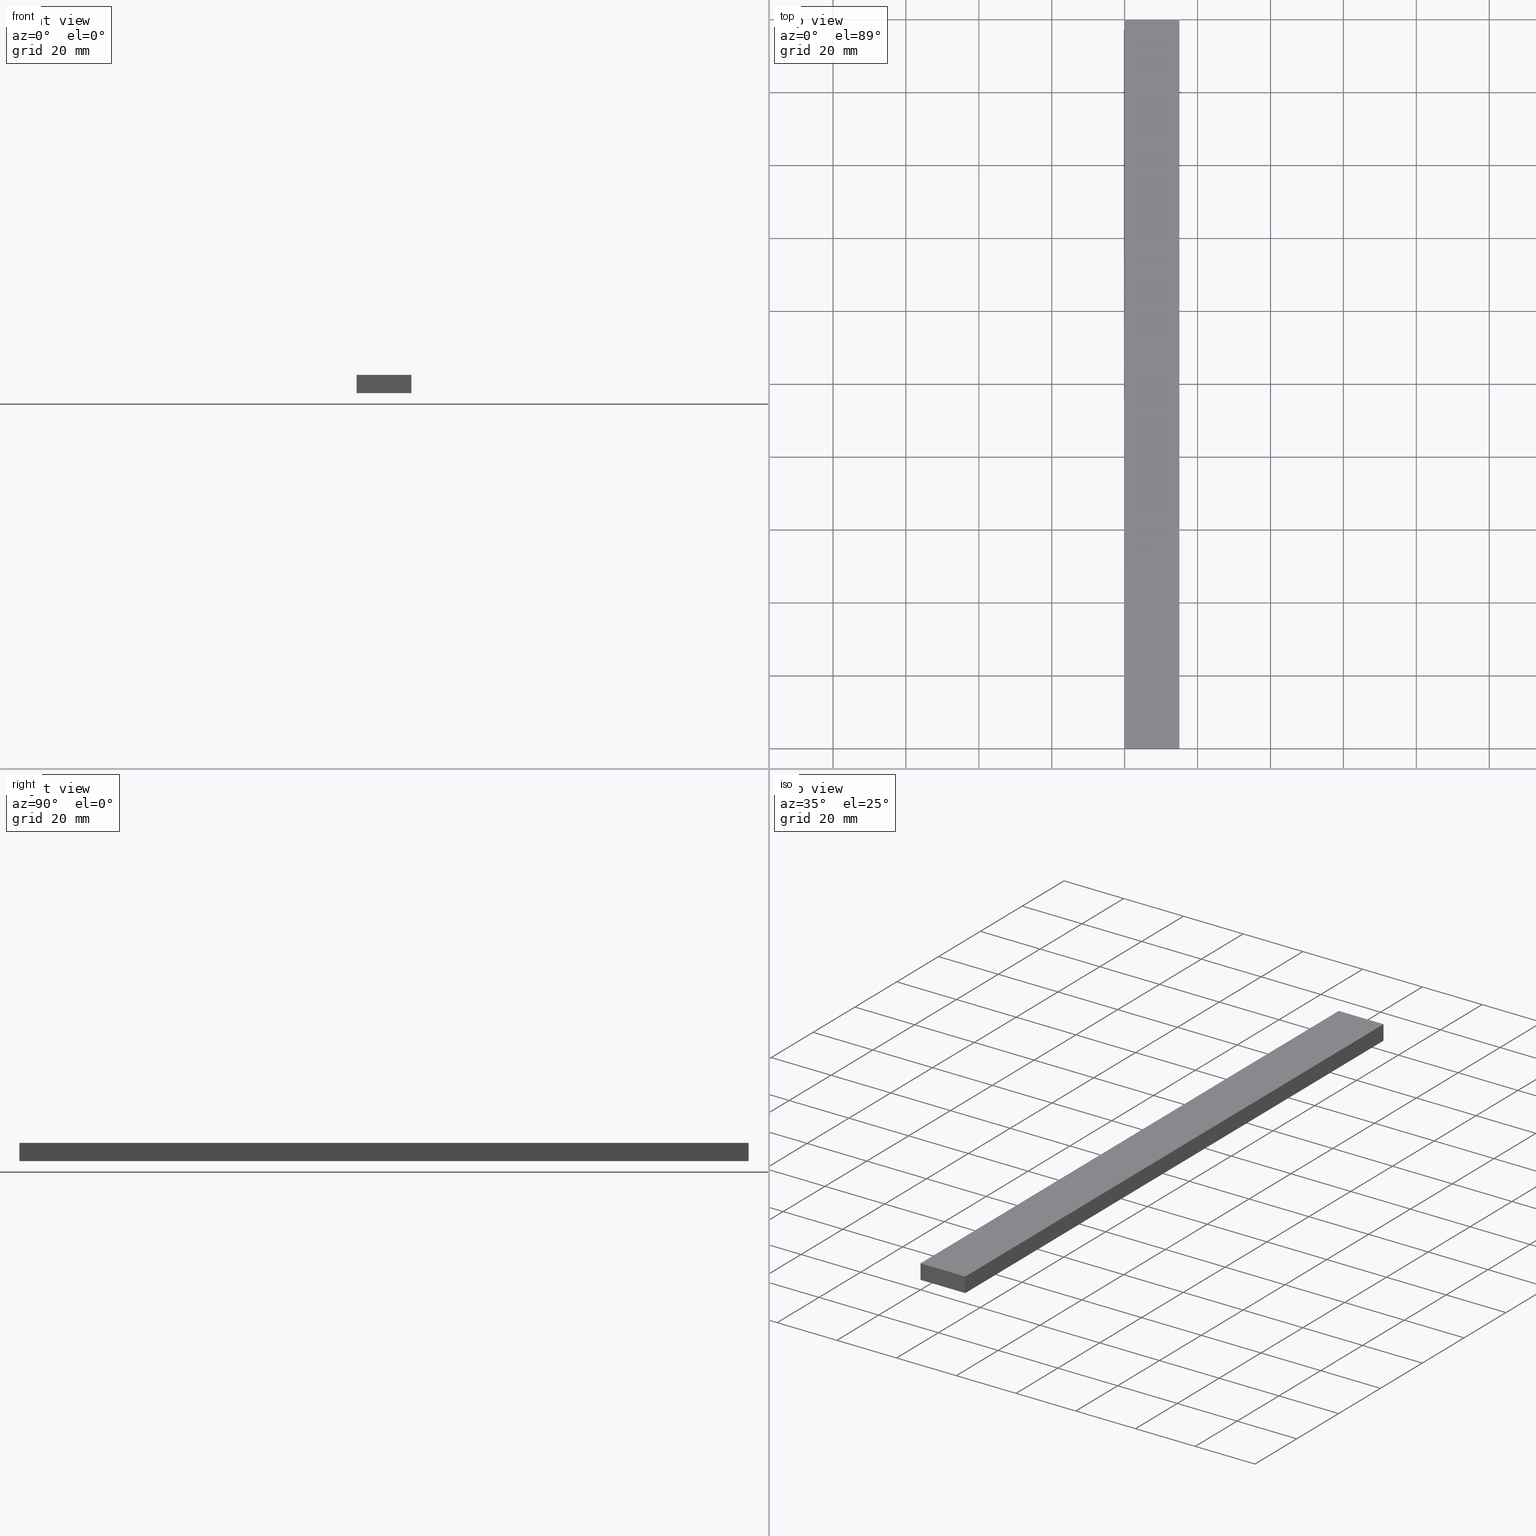
[diagram: canonical four-view strip — front | top / right | iso, engineering-drawing reading convention]
A machine part, canonical four-view strip (front | top / right | iso — engineering-drawing reading convention). The complete STEP part file that produces these views, byte-faithful:
ISO-10303-21;
HEADER;
FILE_DESCRIPTION (( 'STEP AP214' ),
    '1' );
FILE_NAME ('TM_340W_3.STEP',
    '2016-05-09T07:22:38',
    ( '' ),
    ( '' ),
    'SwSTEP 2.0',
    'SolidWorks 2015',
    '' );
FILE_SCHEMA (( 'AUTOMOTIVE_DESIGN' ));
ENDSEC;

DATA;
#1 = LINE ( 'NONE', #127, #180 ) ;
#2 = ORIENTED_EDGE ( 'NONE', *, *, #52, .F. ) ;
#3 = CARTESIAN_POINT ( 'NONE',  ( 0.0000000000000000000, 1000.000000000000000, 5.000000000000000000 ) ) ;
#4 = DIRECTION ( 'NONE',  ( -1.000000000000000000, 0.0000000000000000000, 0.0000000000000000000 ) ) ;
#5 = CARTESIAN_POINT ( 'NONE',  ( 15.00000000000000000, 200.0000000000000000, 5.000000000000000000 ) ) ;
#6 = FACE_OUTER_BOUND ( 'NONE', #100, .T. ) ;
#7 = EDGE_CURVE ( 'NONE', #44, #79, #220, .T. ) ;
#8 = UNCERTAINTY_MEASURE_WITH_UNIT (LENGTH_MEASURE( 1.000000000000000100E-005 ), #116, 'distance_accuracy_value', 'NONE');
#9 =( LENGTH_UNIT ( ) NAMED_UNIT ( * ) SI_UNIT ( .MILLI., .METRE. ) );
#10 = DIRECTION ( 'NONE',  ( -0.0000000000000000000, 1.000000000000000000, 0.0000000000000000000 ) ) ;
#11 = SURFACE_SIDE_STYLE ('',( #19 ) ) ;
#12 = SHAPE_DEFINITION_REPRESENTATION ( #17, #13 ) ;
#13 = SHAPE_REPRESENTATION ( 'TM_340W_3', ( #141, #119 ), #134 ) ;
#14 = CARTESIAN_POINT ( 'NONE',  ( 15.00000000000000000, 1000.000000000000000, 0.0000000000000000000 ) ) ;
#15 =( LENGTH_UNIT ( ) NAMED_UNIT ( * ) SI_UNIT ( .MILLI., .METRE. ) );
#16 = EDGE_CURVE ( 'NONE', #121, #149, #152, .T. ) ;
#17 = PRODUCT_DEFINITION_SHAPE ( 'NONE', 'NONE',  #183 ) ;
#18 = APPLICATION_PROTOCOL_DEFINITION ( 'draft international standard', 'automotive_design', 1998, #53 ) ;
#19 = SURFACE_STYLE_FILL_AREA ( #64 ) ;
#20 = AXIS2_PLACEMENT_3D ( 'NONE', #112, #188, #197 ) ;
#21 = EDGE_CURVE ( 'NONE', #44, #37, #91, .T. ) ;
#22 = PRESENTATION_STYLE_ASSIGNMENT (( #195 ) ) ;
#23 = EDGE_LOOP ( 'NONE', ( #72, #161, #45, #224 ) ) ;
#24 = PLANE ( 'NONE',  #20 ) ;
#25 = EDGE_CURVE ( 'NONE', #37, #121, #69, .T. ) ;
#26 = DIRECTION ( 'NONE',  ( 0.0000000000000000000, -1.000000000000000000, 0.0000000000000000000 ) ) ;
#27 = PRODUCT ( 'TM_340W_3', 'TM_340W_3', '', ( #104 ) ) ;
#28 = COLOUR_RGB ( '',0.7921568627450980000, 0.8196078431372548800, 0.9333333333333333500 ) ;
#29 = AXIS2_PLACEMENT_3D ( 'NONE', #218, #215, #142 ) ;
#30 = DIRECTION ( 'NONE',  ( 1.000000000000000000, 0.0000000000000000000, 0.0000000000000000000 ) ) ;
#31 = EDGE_LOOP ( 'NONE', ( #97, #2, #210, #68 ) ) ;
#32 = EDGE_CURVE ( 'NONE', #56, #44, #90, .T. ) ;
#33 =( NAMED_UNIT ( * ) SI_UNIT ( $, .STERADIAN. ) SOLID_ANGLE_UNIT ( ) );
#34 = UNCERTAINTY_MEASURE_WITH_UNIT (LENGTH_MEASURE( 1.000000000000000100E-005 ), #9, 'distance_accuracy_value', 'NONE');
#35 = VECTOR ( 'NONE', #182, 1000.000000000000000 ) ;
#36 = APPLICATION_CONTEXT ( 'automotive_design' ) ;
#37 = VERTEX_POINT ( 'NONE', #5 ) ;
#38 = FILL_AREA_STYLE_COLOUR ( '', #28 ) ;
#39 = STYLED_ITEM ( 'NONE', ( #93 ), #191 ) ;
#40 = CLOSED_SHELL ( 'NONE', ( #216, #206, #171, #55, #86, #106 ) ) ;
#41 = DIRECTION ( 'NONE',  ( 0.0000000000000000000, 0.0000000000000000000, 1.000000000000000000 ) ) ;
#42 = CARTESIAN_POINT ( 'NONE',  ( 0.0000000000000000000, 0.0000000000000000000, 0.0000000000000000000 ) ) ;
#43 = CARTESIAN_POINT ( 'NONE',  ( 15.00000000000000000, 0.0000000000000000000, 5.000000000000000000 ) ) ;
#44 = VERTEX_POINT ( 'NONE', #50 ) ;
#45 = ORIENTED_EDGE ( 'NONE', *, *, #21, .F. ) ;
#46 = EDGE_CURVE ( 'NONE', #79, #223, #211, .T. ) ;
#47 = ORIENTED_EDGE ( 'NONE', *, *, #25, .F. ) ;
#48 = ORIENTED_EDGE ( 'NONE', *, *, #73, .T. ) ;
#49 = CARTESIAN_POINT ( 'NONE',  ( 0.0000000000000000000, 0.0000000000000000000, 0.0000000000000000000 ) ) ;
#50 = CARTESIAN_POINT ( 'NONE',  ( 0.0000000000000000000, 200.0000000000000000, 5.000000000000000000 ) ) ;
#51 = CARTESIAN_POINT ( 'NONE',  ( 15.00000000000000000, 1000.000000000000000, 5.000000000000000000 ) ) ;
#52 = EDGE_CURVE ( 'NONE', #149, #84, #154, .T. ) ;
#53 = APPLICATION_CONTEXT ( 'automotive_design' ) ;
#54 = UNCERTAINTY_MEASURE_WITH_UNIT (LENGTH_MEASURE( 1.000000000000000100E-005 ), #15, 'distance_accuracy_value', 'NONE');
#55 = ADVANCED_FACE ( 'NONE', ( #145 ), #132, .F. ) ;
#56 = VERTEX_POINT ( 'NONE', #147 ) ;
#57 = PRESENTATION_LAYER_ASSIGNMENT (  '', '', ( #39 ) ) ;
#58 = SURFACE_SIDE_STYLE ('',( #230 ) ) ;
#59 = LINE ( 'NONE', #51, #129 ) ;
#60 = EDGE_LOOP ( 'NONE', ( #130, #117, #192, #125 ) ) ;
#61 = DIRECTION ( 'NONE',  ( 0.0000000000000000000, -1.000000000000000000, 0.0000000000000000000 ) ) ;
#62 = DIRECTION ( 'NONE',  ( 0.0000000000000000000, 0.0000000000000000000, 1.000000000000000000 ) ) ;
#63 =( NAMED_UNIT ( * ) PLANE_ANGLE_UNIT ( ) SI_UNIT ( $, .RADIAN. ) );
#64 = FILL_AREA_STYLE ('',( #38 ) ) ;
#65 = DIRECTION ( 'NONE',  ( 0.0000000000000000000, 0.0000000000000000000, -1.000000000000000000 ) ) ;
#66 = EDGE_CURVE ( 'NONE', #121, #56, #1, .T. ) ;
#67 = DIRECTION ( 'NONE',  ( 0.0000000000000000000, 0.0000000000000000000, 1.000000000000000000 ) ) ;
#68 = ORIENTED_EDGE ( 'NONE', *, *, #46, .F. ) ;
#69 = LINE ( 'NONE', #114, #111 ) ;
#70 = DIRECTION ( 'NONE',  ( 0.0000000000000000000, -1.000000000000000000, 0.0000000000000000000 ) ) ;
#71 = MECHANICAL_DESIGN_GEOMETRIC_PRESENTATION_REPRESENTATION (  '', ( #39 ), #78 ) ;
#72 = ORIENTED_EDGE ( 'NONE', *, *, #46, .T. ) ;
#73 = EDGE_CURVE ( 'NONE', #56, #84, #231, .T. ) ;
#74 = ORIENTED_EDGE ( 'NONE', *, *, #229, .T. ) ;
#75 =( NAMED_UNIT ( * ) PLANE_ANGLE_UNIT ( ) SI_UNIT ( $, .RADIAN. ) );
#76 = APPLICATION_PROTOCOL_DEFINITION ( 'draft international standard', 'automotive_design', 1998, #135 ) ;
#77 = CARTESIAN_POINT ( 'NONE',  ( 0.0000000000000000000, 0.0000000000000000000, 0.0000000000000000000 ) ) ;
#78 =( GEOMETRIC_REPRESENTATION_CONTEXT ( 3 ) GLOBAL_UNCERTAINTY_ASSIGNED_CONTEXT ( ( #8 ) ) GLOBAL_UNIT_ASSIGNED_CONTEXT ( ( #116, #75, #33 ) ) REPRESENTATION_CONTEXT ( 'NONE', 'WORKASPACE' ) );
#79 = VERTEX_POINT ( 'NONE', #115 ) ;
#80 = APPLICATION_CONTEXT ( 'automotive_design' ) ;
#81 = DIRECTION ( 'NONE',  ( 0.0000000000000000000, 0.0000000000000000000, -1.000000000000000000 ) ) ;
#82 = VECTOR ( 'NONE', #30, 1000.000000000000000 ) ;
#83 = CARTESIAN_POINT ( 'NONE',  ( 15.00000000000000000, 200.0000000000000000, 0.0000000000000000000 ) ) ;
#84 = VERTEX_POINT ( 'NONE', #108 ) ;
#85 =( NAMED_UNIT ( * ) SI_UNIT ( $, .STERADIAN. ) SOLID_ANGLE_UNIT ( ) );
#86 = ADVANCED_FACE ( 'NONE', ( #96 ), #202, .T. ) ;
#87 = AXIS2_PLACEMENT_3D ( 'NONE', #14, #205, #163 ) ;
#88 = DIRECTION ( 'NONE',  ( -0.0000000000000000000, 1.000000000000000000, 0.0000000000000000000 ) ) ;
#89 = EDGE_LOOP ( 'NONE', ( #74, #105, #167, #48 ) ) ;
#90 = LINE ( 'NONE', #94, #92 ) ;
#91 = LINE ( 'NONE', #151, #82 ) ;
#92 = VECTOR ( 'NONE', #67, 1000.000000000000000 ) ;
#93 = PRESENTATION_STYLE_ASSIGNMENT (( #159 ) ) ;
#94 = CARTESIAN_POINT ( 'NONE',  ( 0.0000000000000000000, 200.0000000000000000, 0.0000000000000000000 ) ) ;
#95 = CONTEXT_DEPENDENT_SHAPE_REPRESENTATION ( #235, #173 ) ;
#96 = FACE_OUTER_BOUND ( 'NONE', #60, .T. ) ;
#97 = ORIENTED_EDGE ( 'NONE', *, *, #229, .F. ) ;
#98 = ORIENTED_EDGE ( 'NONE', *, *, #73, .F. ) ;
#99 = DIRECTION ( 'NONE',  ( 0.0000000000000000000, -1.000000000000000000, 0.0000000000000000000 ) ) ;
#100 = EDGE_LOOP ( 'NONE', ( #175, #138, #47, #237 ) ) ;
#101 = AXIS2_PLACEMENT_3D ( 'NONE', #170, #88, #160 ) ;
#102 = VECTOR ( 'NONE', #219, 1000.000000000000000 ) ;
#103 = FACE_OUTER_BOUND ( 'NONE', #31, .T. ) ;
#104 = PRODUCT_CONTEXT ( 'NONE', #80, 'mechanical' ) ;
#105 = ORIENTED_EDGE ( 'NONE', *, *, #7, .F. ) ;
#106 = ADVANCED_FACE ( 'NONE', ( #103 ), #185, .F. ) ;
#107 = AXIS2_PLACEMENT_3D ( 'NONE', #232, #209, #208 ) ;
#108 = CARTESIAN_POINT ( 'NONE',  ( 0.0000000000000000000, 0.0000000000000000000, 0.0000000000000000000 ) ) ;
#109 = FACE_OUTER_BOUND ( 'NONE', #89, .T. ) ;
#110 = EDGE_LOOP ( 'NONE', ( #233, #98, #166, #126 ) ) ;
#111 = VECTOR ( 'NONE', #65, 1000.000000000000000 ) ;
#112 = CARTESIAN_POINT ( 'NONE',  ( 0.0000000000000000000, 1000.000000000000000, 0.0000000000000000000 ) ) ;
#113 = UNCERTAINTY_MEASURE_WITH_UNIT (LENGTH_MEASURE( 1.000000000000000100E-005 ), #157, 'distance_accuracy_value', 'NONE');
#114 = CARTESIAN_POINT ( 'NONE',  ( 15.00000000000000000, 200.0000000000000000, 5.000000000000000000 ) ) ;
#115 = CARTESIAN_POINT ( 'NONE',  ( 0.0000000000000000000, 0.0000000000000000000, 5.000000000000000000 ) ) ;
#116 =( LENGTH_UNIT ( ) NAMED_UNIT ( * ) SI_UNIT ( .MILLI., .METRE. ) );
#117 = ORIENTED_EDGE ( 'NONE', *, *, #21, .T. ) ;
#118 = SHAPE_REPRESENTATION_RELATIONSHIP ( 'NONE' , 'NONE' ,  #164, #191 ) ;
#119 = AXIS2_PLACEMENT_3D ( 'NONE', #207, #190, #179 ) ;
#120 = APPLICATION_PROTOCOL_DEFINITION ( 'draft international standard', 'automotive_design', 1998, #80 ) ;
#121 = VERTEX_POINT ( 'NONE', #83 ) ;
#122 = AXIS2_PLACEMENT_3D ( 'NONE', #49, #10, #128 ) ;
#123 = FILL_AREA_STYLE ('',( #181 ) ) ;
#124 = PLANE ( 'NONE',  #222 ) ;
#125 = ORIENTED_EDGE ( 'NONE', *, *, #66, .T. ) ;
#126 = ORIENTED_EDGE ( 'NONE', *, *, #16, .T. ) ;
#127 = CARTESIAN_POINT ( 'NONE',  ( 15.00000000000000000, 200.0000000000000000, 0.0000000000000000000 ) ) ;
#128 = DIRECTION ( 'NONE',  ( 1.000000000000000000, 0.0000000000000000000, 0.0000000000000000000 ) ) ;
#129 = VECTOR ( 'NONE', #99, 1000.000000000000000 ) ;
#130 = ORIENTED_EDGE ( 'NONE', *, *, #32, .T. ) ;
#131 = COLOUR_RGB ( '',0.7921568627450980000, 0.8196078431372548800, 0.9333333333333333500 ) ;
#132 = PLANE ( 'NONE',  #87 ) ;
#133 = VECTOR ( 'NONE', #81, 1000.000000000000000 ) ;
#134 =( GEOMETRIC_REPRESENTATION_CONTEXT ( 3 ) GLOBAL_UNCERTAINTY_ASSIGNED_CONTEXT ( ( #113 ) ) GLOBAL_UNIT_ASSIGNED_CONTEXT ( ( #157, #155, #177 ) ) REPRESENTATION_CONTEXT ( 'NONE', 'WORKASPACE' ) );
#135 = APPLICATION_CONTEXT ( 'automotive_design' ) ;
#136 = STYLED_ITEM ( 'NONE', ( #22 ), #194 ) ;
#137 = VECTOR ( 'NONE', #148, 1000.000000000000000 ) ;
#138 = ORIENTED_EDGE ( 'NONE', *, *, #16, .F. ) ;
#139 = PRODUCT_DEFINITION_CONTEXT ( 'detailed design', #135, 'design' ) ;
#140 = VECTOR ( 'NONE', #26, 1000.000000000000000 ) ;
#141 = AXIS2_PLACEMENT_3D ( 'NONE', #42, #41, #176 ) ;
#142 = DIRECTION ( 'NONE',  ( 1.000000000000000000, 0.0000000000000000000, 0.0000000000000000000 ) ) ;
#143 = CARTESIAN_POINT ( 'NONE',  ( 0.0000000000000000000, 1000.000000000000000, 5.000000000000000000 ) ) ;
#144 = CARTESIAN_POINT ( 'NONE',  ( 0.0000000000000000000, 1000.000000000000000, 0.0000000000000000000 ) ) ;
#145 = FACE_OUTER_BOUND ( 'NONE', #110, .T. ) ;
#146 = AXIS2_PLACEMENT_3D ( 'NONE', #225, #4, #62 ) ;
#147 = CARTESIAN_POINT ( 'NONE',  ( 0.0000000000000000000, 200.0000000000000000, 0.0000000000000000000 ) ) ;
#148 = DIRECTION ( 'NONE',  ( 1.000000000000000000, 0.0000000000000000000, 0.0000000000000000000 ) ) ;
#149 = VERTEX_POINT ( 'NONE', #168 ) ;
#150 = LINE ( 'NONE', #77, #35 ) ;
#151 = CARTESIAN_POINT ( 'NONE',  ( 0.0000000000000000000, 200.0000000000000000, 5.000000000000000000 ) ) ;
#152 = LINE ( 'NONE', #196, #200 ) ;
#153 = PRODUCT_DEFINITION ( 'UNKNOWN', '', #217, #201 ) ;
#154 = LINE ( 'NONE', #228, #102 ) ;
#155 =( NAMED_UNIT ( * ) PLANE_ANGLE_UNIT ( ) SI_UNIT ( $, .RADIAN. ) );
#156 = PRESENTATION_LAYER_ASSIGNMENT (  '', '', ( #136 ) ) ;
#157 =( LENGTH_UNIT ( ) NAMED_UNIT ( * ) SI_UNIT ( .MILLI., .METRE. ) );
#158 = DIRECTION ( 'NONE',  ( 0.0000000000000000000, 0.0000000000000000000, -1.000000000000000000 ) ) ;
#159 = SURFACE_STYLE_USAGE ( .BOTH. , #58 ) ;
#160 = DIRECTION ( 'NONE',  ( 1.000000000000000000, 0.0000000000000000000, 0.0000000000000000000 ) ) ;
#161 = ORIENTED_EDGE ( 'NONE', *, *, #212, .F. ) ;
#162 = APPLICATION_PROTOCOL_DEFINITION ( 'draft international standard', 'automotive_design', 1998, #36 ) ;
#163 = DIRECTION ( 'NONE',  ( 1.000000000000000000, 0.0000000000000000000, 0.0000000000000000000 ) ) ;
#164 = SHAPE_REPRESENTATION ( 'rubber foam', ( #29 ), #184 ) ;
#165 = DIRECTION ( 'NONE',  ( -1.000000000000000000, 0.0000000000000000000, 0.0000000000000000000 ) ) ;
#166 = ORIENTED_EDGE ( 'NONE', *, *, #66, .F. ) ;
#167 = ORIENTED_EDGE ( 'NONE', *, *, #32, .F. ) ;
#168 = CARTESIAN_POINT ( 'NONE',  ( 15.00000000000000000, 0.0000000000000000000, 0.0000000000000000000 ) ) ;
#169 = PLANE ( 'NONE',  #146 ) ;
#170 = CARTESIAN_POINT ( 'NONE',  ( 0.0000000000000000000, 200.0000000000000000, 0.0000000000000000000 ) ) ;
#171 = ADVANCED_FACE ( 'NONE', ( #6 ), #169, .F. ) ;
#172 = LINE ( 'NONE', #214, #133 ) ;
#173 = PRODUCT_DEFINITION_SHAPE ( 'NONE', 'NONE',  #239 ) ;
#174 = MECHANICAL_DESIGN_GEOMETRIC_PRESENTATION_REPRESENTATION (  '', ( #136 ), #187 ) ;
#175 = ORIENTED_EDGE ( 'NONE', *, *, #198, .T. ) ;
#176 = DIRECTION ( 'NONE',  ( 1.000000000000000000, 0.0000000000000000000, 0.0000000000000000000 ) ) ;
#177 =( NAMED_UNIT ( * ) SI_UNIT ( $, .STERADIAN. ) SOLID_ANGLE_UNIT ( ) );
#178 =( NAMED_UNIT ( * ) SI_UNIT ( $, .STERADIAN. ) SOLID_ANGLE_UNIT ( ) );
#179 = DIRECTION ( 'NONE',  ( 1.000000000000000000, 0.0000000000000000000, 0.0000000000000000000 ) ) ;
#180 = VECTOR ( 'NONE', #221, 1000.000000000000000 ) ;
#181 = FILL_AREA_STYLE_COLOUR ( '', #131 ) ;
#182 = DIRECTION ( 'NONE',  ( 0.0000000000000000000, 0.0000000000000000000, 1.000000000000000000 ) ) ;
#183 = PRODUCT_DEFINITION ( 'UNKNOWN', '', #189, #139 ) ;
#184 =( GEOMETRIC_REPRESENTATION_CONTEXT ( 3 ) GLOBAL_UNCERTAINTY_ASSIGNED_CONTEXT ( ( #54 ) ) GLOBAL_UNIT_ASSIGNED_CONTEXT ( ( #15, #63, #178 ) ) REPRESENTATION_CONTEXT ( 'NONE', 'WORKASPACE' ) );
#185 = PLANE ( 'NONE',  #122 ) ;
#186 =( NAMED_UNIT ( * ) PLANE_ANGLE_UNIT ( ) SI_UNIT ( $, .RADIAN. ) );
#187 =( GEOMETRIC_REPRESENTATION_CONTEXT ( 3 ) GLOBAL_UNCERTAINTY_ASSIGNED_CONTEXT ( ( #34 ) ) GLOBAL_UNIT_ASSIGNED_CONTEXT ( ( #9, #186, #85 ) ) REPRESENTATION_CONTEXT ( 'NONE', 'WORKASPACE' ) );
#188 = DIRECTION ( 'NONE',  ( 1.000000000000000000, 0.0000000000000000000, 0.0000000000000000000 ) ) ;
#189 = PRODUCT_DEFINITION_FORMATION_WITH_SPECIFIED_SOURCE ( 'ANY', '', #27, .NOT_KNOWN. ) ;
#190 = DIRECTION ( 'NONE',  ( 0.0000000000000000000, 0.0000000000000000000, 1.000000000000000000 ) ) ;
#191 = ADVANCED_BREP_SHAPE_REPRESENTATION ( '', ( #194, #29 ), #184 ) ;
#192 = ORIENTED_EDGE ( 'NONE', *, *, #25, .T. ) ;
#193 = FACE_OUTER_BOUND ( 'NONE', #23, .T. ) ;
#194 = MANIFOLD_SOLID_BREP ( '���߰�1', #40 ) ;
#195 = SURFACE_STYLE_USAGE ( .BOTH. , #11 ) ;
#196 = CARTESIAN_POINT ( 'NONE',  ( 15.00000000000000000, 1000.000000000000000, 0.0000000000000000000 ) ) ;
#197 = DIRECTION ( 'NONE',  ( 0.0000000000000000000, 0.0000000000000000000, -1.000000000000000000 ) ) ;
#198 = EDGE_CURVE ( 'NONE', #223, #149, #172, .T. ) ;
#199 = PRODUCT_DEFINITION_SHAPE ( 'NONE', 'NONE',  #153 ) ;
#200 = VECTOR ( 'NONE', #70, 1000.000000000000000 ) ;
#201 = PRODUCT_DEFINITION_CONTEXT ( 'detailed design', #36, 'design' ) ;
#202 = PLANE ( 'NONE',  #101 ) ;
#203 = VECTOR ( 'NONE', #61, 1000.000000000000000 ) ;
#204 = PRODUCT_RELATED_PRODUCT_CATEGORY ( 'part', '', ( #27 ) ) ;
#205 = DIRECTION ( 'NONE',  ( 0.0000000000000000000, 0.0000000000000000000, 1.000000000000000000 ) ) ;
#206 = ADVANCED_FACE ( 'NONE', ( #193 ), #124, .F. ) ;
#207 = CARTESIAN_POINT ( 'NONE',  ( 0.0000000000000000000, 0.0000000000000000000, 0.0000000000000000000 ) ) ;
#208 = DIRECTION ( 'NONE',  ( 1.000000000000000000, 0.0000000000000000000, 0.0000000000000000000 ) ) ;
#209 = DIRECTION ( 'NONE',  ( 0.0000000000000000000, 0.0000000000000000000, 1.000000000000000000 ) ) ;
#210 = ORIENTED_EDGE ( 'NONE', *, *, #198, .F. ) ;
#211 = LINE ( 'NONE', #227, #137 ) ;
#212 = EDGE_CURVE ( 'NONE', #37, #223, #59, .T. ) ;
#213 = PRODUCT_CONTEXT ( 'NONE', #53, 'mechanical' ) ;
#214 = CARTESIAN_POINT ( 'NONE',  ( 15.00000000000000000, 0.0000000000000000000, 5.000000000000000000 ) ) ;
#215 = DIRECTION ( 'NONE',  ( 0.0000000000000000000, 0.0000000000000000000, 1.000000000000000000 ) ) ;
#216 = ADVANCED_FACE ( 'NONE', ( #109 ), #24, .F. ) ;
#217 = PRODUCT_DEFINITION_FORMATION_WITH_SPECIFIED_SOURCE ( 'ANY', '', #236, .NOT_KNOWN. ) ;
#218 = CARTESIAN_POINT ( 'NONE',  ( 0.0000000000000000000, 0.0000000000000000000, 0.0000000000000000000 ) ) ;
#219 = DIRECTION ( 'NONE',  ( -1.000000000000000000, 0.0000000000000000000, 0.0000000000000000000 ) ) ;
#220 = LINE ( 'NONE', #3, #140 ) ;
#221 = DIRECTION ( 'NONE',  ( -1.000000000000000000, 0.0000000000000000000, 0.0000000000000000000 ) ) ;
#222 = AXIS2_PLACEMENT_3D ( 'NONE', #143, #158, #165 ) ;
#223 = VERTEX_POINT ( 'NONE', #43 ) ;
#224 = ORIENTED_EDGE ( 'NONE', *, *, #7, .T. ) ;
#225 = CARTESIAN_POINT ( 'NONE',  ( 15.00000000000000000, 1000.000000000000000, 5.000000000000000000 ) ) ;
#226 = SHAPE_DEFINITION_REPRESENTATION ( #199, #164 ) ;
#227 = CARTESIAN_POINT ( 'NONE',  ( 0.0000000000000000000, 0.0000000000000000000, 5.000000000000000000 ) ) ;
#228 = CARTESIAN_POINT ( 'NONE',  ( 15.00000000000000000, 0.0000000000000000000, 0.0000000000000000000 ) ) ;
#229 = EDGE_CURVE ( 'NONE', #84, #79, #150, .T. ) ;
#230 = SURFACE_STYLE_FILL_AREA ( #123 ) ;
#231 = LINE ( 'NONE', #144, #203 ) ;
#232 = CARTESIAN_POINT ( 'NONE',  ( 0.0000000000000000000, 0.0000000000000000000, 0.0000000000000000000 ) ) ;
#233 = ORIENTED_EDGE ( 'NONE', *, *, #52, .T. ) ;
#234 = PRODUCT_RELATED_PRODUCT_CATEGORY ( 'part', '', ( #236 ) ) ;
#235 =( REPRESENTATION_RELATIONSHIP ('NONE','NONE', #13, #164 ) REPRESENTATION_RELATIONSHIP_WITH_TRANSFORMATION ( #238 )SHAPE_REPRESENTATION_RELATIONSHIP( ) );
#236 = PRODUCT ( 'rubber foam', 'rubber foam', '', ( #213 ) ) ;
#237 = ORIENTED_EDGE ( 'NONE', *, *, #212, .T. ) ;
#238 = ITEM_DEFINED_TRANSFORMATION ( 'NONE', 'NONE', #119,  #29 ) ;
#239 = NEXT_ASSEMBLY_USAGE_OCCURRENCE ( 'NAUO1', ' ', ' ', #183, #153, $ ) ;
ENDSEC;
END-ISO-10303-21;
